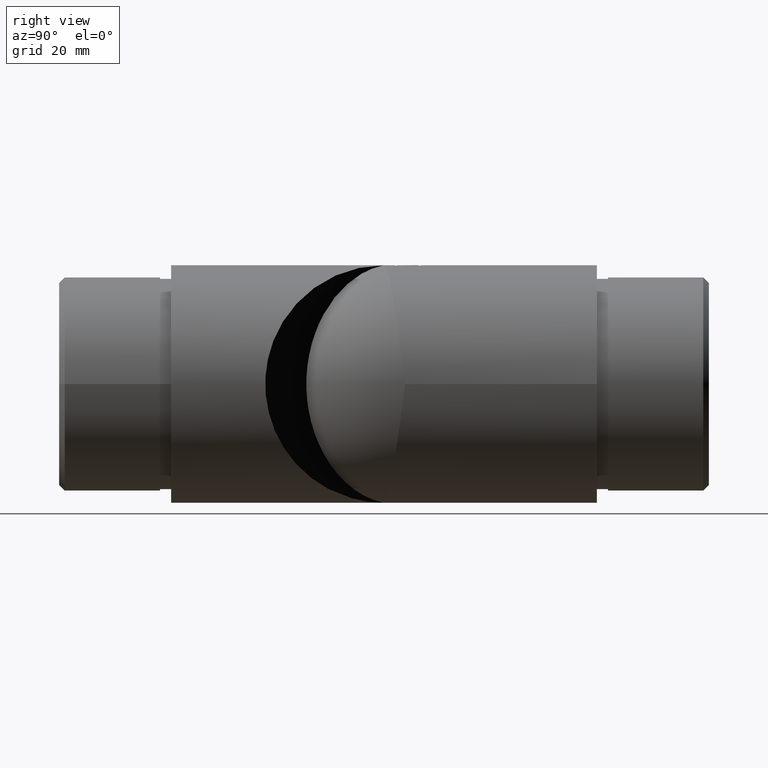
[diagram: clean part render]
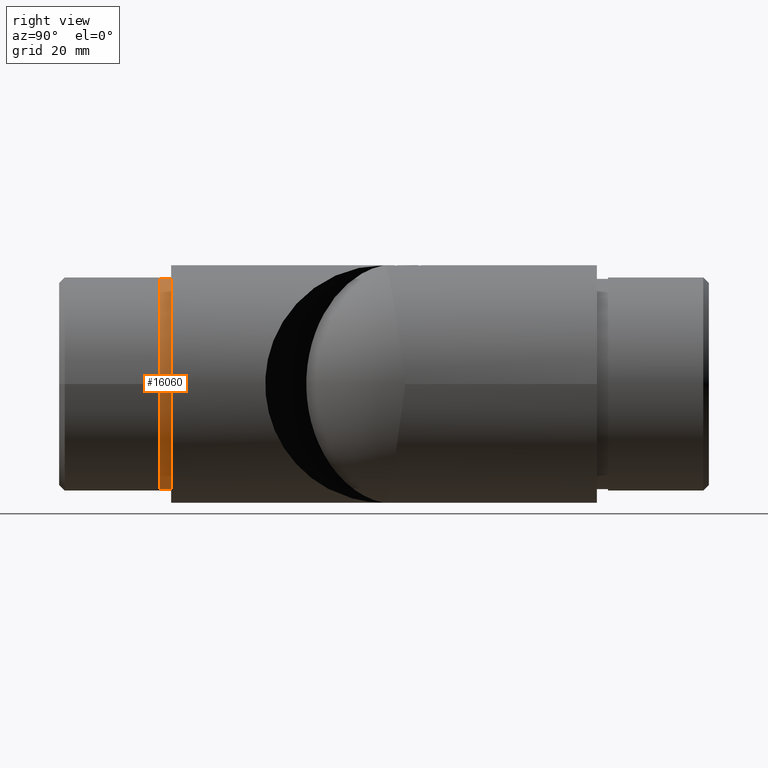
[diagram: same view with one face highlighted and labeled with its STEP entity id]
A machine part, right view. The second image highlights one B-rep face of the part: STEP entity #16060.
In plain terms, the highlighted cylindrical surface (bore or boss wall) has radius 18.9 mm, axis along (0, 1, 0).
Its self-contained STEP definition (entity closure, byte-faithful):
#1177 = FACE_OUTER_BOUND ( 'NONE', #14982, .T. ) ;
#2554 = CARTESIAN_POINT ( 'NONE',  ( -1.108127979671411000E-017, -2.000000000000000000, 0.0000000000000000000 ) ) ;
#3302 = AXIS2_PLACEMENT_3D ( 'NONE', #2554, #4081, #12700 ) ;
#3912 = VERTEX_POINT ( 'NONE', #9338 ) ;
#4081 = DIRECTION ( 'NONE',  ( -5.540639898357054400E-018, -1.000000000000000000, 0.0000000000000000000 ) ) ;
#4651 = ORIENTED_EDGE ( 'NONE', *, *, #13944, .T. ) ;
#5046 = CIRCLE ( 'NONE', #15368, 18.89999999999999900 ) ;
#5075 = DIRECTION ( 'NONE',  ( -5.540639898357054400E-018, -1.000000000000000000, 0.0000000000000000000 ) ) ;
#6080 = DIRECTION ( 'NONE',  ( -1.000000000000000000, 0.0000000000000000000, 0.0000000000000000000 ) ) ;
#7287 = CARTESIAN_POINT ( 'NONE',  ( -1.108127979671411000E-017, -2.000000000000000000, 0.0000000000000000000 ) ) ;
#7794 = CIRCLE ( 'NONE', #3302, 18.89999999999999900 ) ;
#8011 = FACE_OUTER_BOUND ( 'NONE', #8970, .T. ) ;
#8810 = DIRECTION ( 'NONE',  ( 5.540639898357055100E-018, 1.000000000000000000, -0.0000000000000000000 ) ) ;
#8970 = EDGE_LOOP ( 'NONE', ( #4651 ) ) ;
#9180 = DIRECTION ( 'NONE',  ( 1.000000000000000000, -5.540639898357055100E-018, 0.0000000000000000000 ) ) ;
#9338 = CARTESIAN_POINT ( 'NONE',  ( 18.89999999999999900, -1.047180940789483300E-016, 0.0000000000000000000 ) ) ;
#9659 = AXIS2_PLACEMENT_3D ( 'NONE', #7287, #8810, #6080 ) ;
#10742 = CARTESIAN_POINT ( 'NONE',  ( 18.89999999999999900, -2.000000000000000000, 0.0000000000000000000 ) ) ;
#10769 = CARTESIAN_POINT ( 'NONE',  ( 0.0000000000000000000, 0.0000000000000000000, 0.0000000000000000000 ) ) ;
#12700 = DIRECTION ( 'NONE',  ( 1.000000000000000000, 0.0000000000000000000, 0.0000000000000000000 ) ) ;
#13238 = ORIENTED_EDGE ( 'NONE', *, *, #14978, .F. ) ;
#13944 = EDGE_CURVE ( 'NONE', #3912, #3912, #5046, .T. ) ;
#14978 = EDGE_CURVE ( 'NONE', #17828, #17828, #7794, .T. ) ;
#14982 = EDGE_LOOP ( 'NONE', ( #13238 ) ) ;
#15051 = CYLINDRICAL_SURFACE ( 'NONE', #9659, 18.89999999999999900 ) ;
#15368 = AXIS2_PLACEMENT_3D ( 'NONE', #10769, #5075, #9180 ) ;
#16060 = ADVANCED_FACE ( 'NONE', ( #1177, #8011 ), #15051, .T. ) ;
#17828 = VERTEX_POINT ( 'NONE', #10742 ) ;